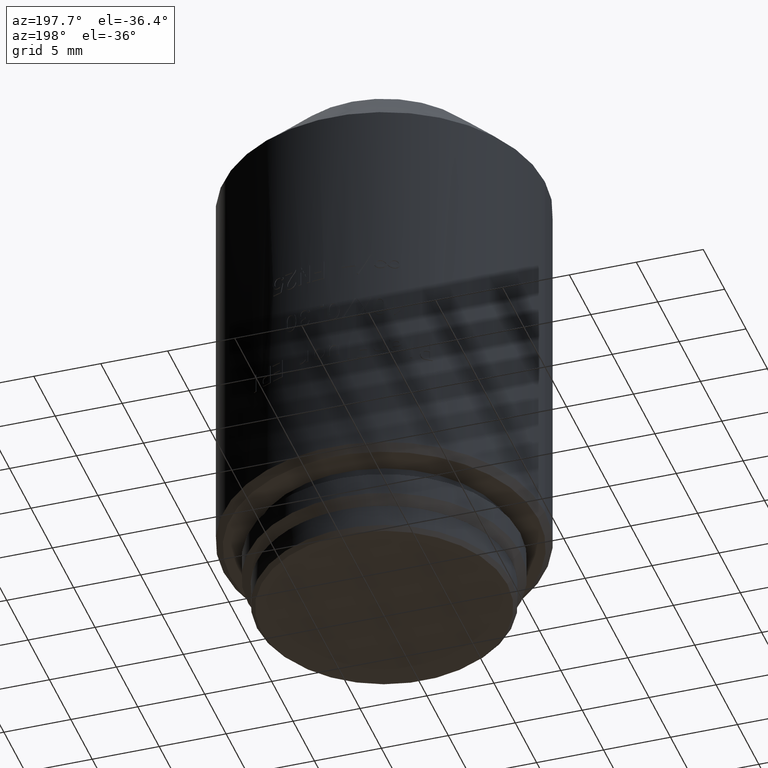
[diagram: clean part render]
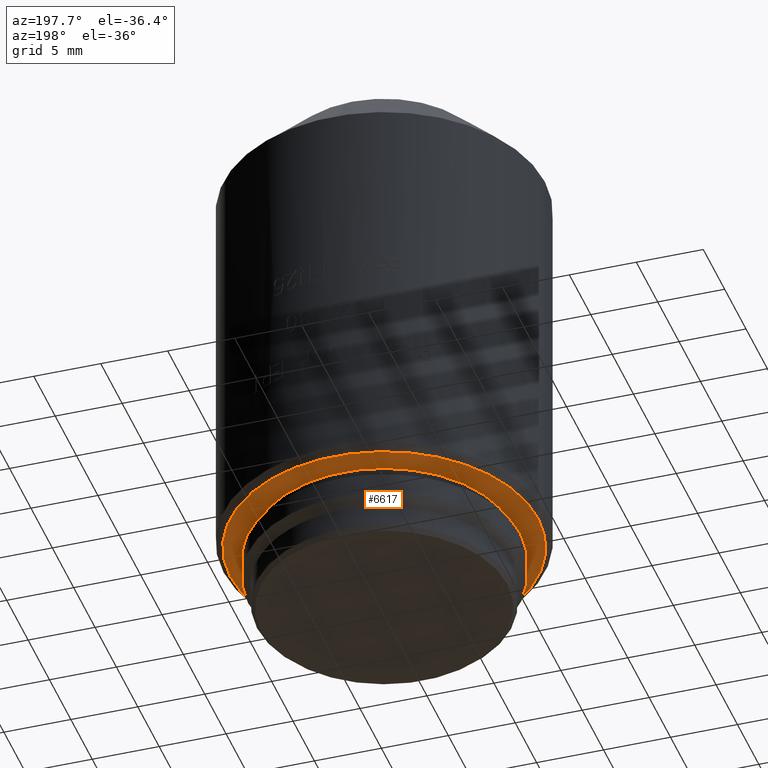
[diagram: same view with one face highlighted and labeled with its STEP entity id]
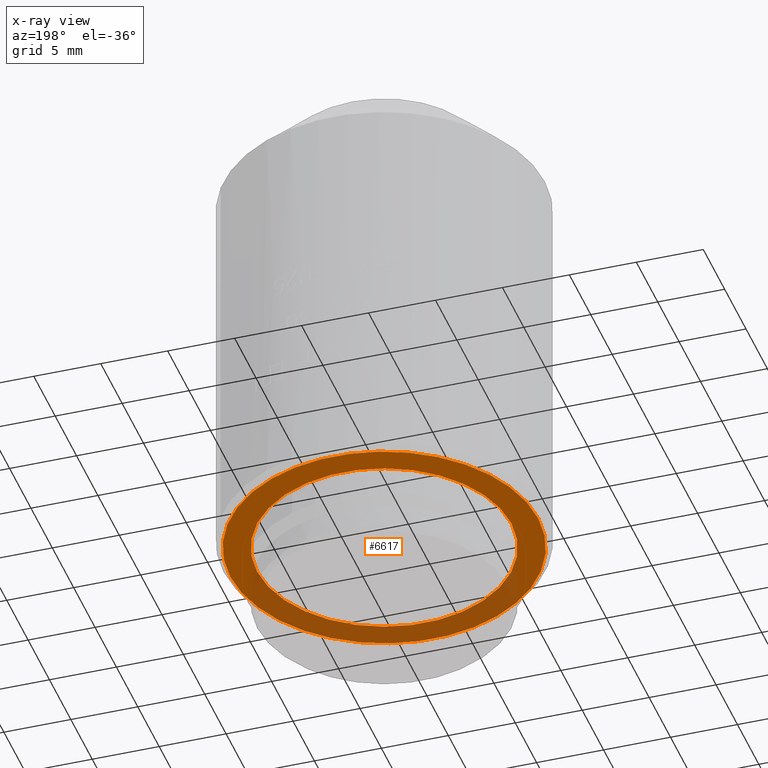
[diagram: x-ray of the same camera — body ghosted, the highlighted face saturated]
A machine part, auxiliary view. The second image highlights one B-rep face of the part: STEP entity #6617.
The next image is the same camera in x-ray: the body ghosted, the highlighted face saturated — about 36% of this face is hidden behind the body in this view.
In plain terms, the highlighted planar face has unit normal (0, 0, -1).
Its self-contained STEP definition (entity closure, byte-faithful):
#265 = DIRECTION ( 'NONE',  ( 0.000000000000000000, 0.000000000000000000, -1.000000000000000000 ) ) ;
#359 = DIRECTION ( 'NONE',  ( -1.000000000000000000, 0.000000000000000000, 0.000000000000000000 ) ) ;
#415 = AXIS2_PLACEMENT_3D ( 'NONE', #3489, #13536, #10316 ) ;
#1406 = DIRECTION ( 'NONE',  ( -1.000000000000000000, 0.000000000000000000, 0.000000000000000000 ) ) ;
#1951 = DIRECTION ( 'NONE',  ( 0.000000000000000000, 0.000000000000000000, -1.000000000000000000 ) ) ;
#2270 = CARTESIAN_POINT ( 'NONE',  ( 0.000000000000000000, 0.000000000000000000, 5.299999999999999822 ) ) ;
#2687 = ORIENTED_EDGE ( 'NONE', *, *, #20535, .F. ) ;
#3489 = CARTESIAN_POINT ( 'NONE',  ( 0.000000000000000000, 0.000000000000000000, 5.299999999999999822 ) ) ;
#4546 = CIRCLE ( 'NONE', #19889, 11.50000000000000000 ) ;
#5059 = VERTEX_POINT ( 'NONE', #9991 ) ;
#6203 = DIRECTION ( 'NONE',  ( 0.000000000000000000, 0.000000000000000000, -1.000000000000000000 ) ) ;
#6617 = ADVANCED_FACE ( 'NONE', ( #9020, #19180 ), #10590, .T. ) ;
#6679 = AXIS2_PLACEMENT_3D ( 'NONE', #13375, #11706, #1406 ) ;
#7120 = DIRECTION ( 'NONE',  ( 0.000000000000000000, -1.000000000000000000, 0.000000000000000000 ) ) ;
#7543 = AXIS2_PLACEMENT_3D ( 'NONE', #8808, #265, #7120 ) ;
#7583 = ORIENTED_EDGE ( 'NONE', *, *, #8178, .T. ) ;
#7595 = EDGE_LOOP ( 'NONE', ( #11756, #2687 ) ) ;
#8178 = EDGE_CURVE ( 'NONE', #5059, #14647, #14746, .T. ) ;
#8808 = CARTESIAN_POINT ( 'NONE',  ( 0.000000000000000000, 0.000000000000000000, 5.299999999999999822 ) ) ;
#9020 = FACE_BOUND ( 'NONE', #7595, .T. ) ;
#9099 = CIRCLE ( 'NONE', #11612, 9.500000000000000000 ) ;
#9991 = CARTESIAN_POINT ( 'NONE',  ( -11.50000000000000000, 1.438959988998139963E-15, 5.299999999999999822 ) ) ;
#9993 = DIRECTION ( 'NONE',  ( -1.000000000000000000, 0.000000000000000000, 0.000000000000000000 ) ) ;
#10316 = DIRECTION ( 'NONE',  ( -1.000000000000000000, 0.000000000000000000, 0.000000000000000000 ) ) ;
#10590 = PLANE ( 'NONE',  #7543 ) ;
#11612 = AXIS2_PLACEMENT_3D ( 'NONE', #14106, #6203, #9993 ) ;
#11706 = DIRECTION ( 'NONE',  ( 0.000000000000000000, 0.000000000000000000, -1.000000000000000000 ) ) ;
#11756 = ORIENTED_EDGE ( 'NONE', *, *, #13531, .F. ) ;
#13375 = CARTESIAN_POINT ( 'NONE',  ( 0.000000000000000000, 0.000000000000000000, 5.299999999999999822 ) ) ;
#13531 = EDGE_CURVE ( 'NONE', #20081, #22028, #18452, .T. ) ;
#13536 = DIRECTION ( 'NONE',  ( 0.000000000000000000, 0.000000000000000000, -1.000000000000000000 ) ) ;
#13788 = EDGE_CURVE ( 'NONE', #14647, #5059, #4546, .T. ) ;
#13909 = CARTESIAN_POINT ( 'NONE',  ( -9.500000000000000000, 1.163414459189985485E-15, 5.299999999999999822 ) ) ;
#14106 = CARTESIAN_POINT ( 'NONE',  ( 0.000000000000000000, 0.000000000000000000, 5.299999999999999822 ) ) ;
#14647 = VERTEX_POINT ( 'NONE', #19938 ) ;
#14746 = CIRCLE ( 'NONE', #415, 11.50000000000000000 ) ;
#16418 = CARTESIAN_POINT ( 'NONE',  ( 9.500000000000000000, 0.000000000000000000, 5.299999999999999822 ) ) ;
#18323 = EDGE_LOOP ( 'NONE', ( #21994, #7583 ) ) ;
#18452 = CIRCLE ( 'NONE', #6679, 9.500000000000000000 ) ;
#19180 = FACE_OUTER_BOUND ( 'NONE', #18323, .T. ) ;
#19889 = AXIS2_PLACEMENT_3D ( 'NONE', #2270, #1951, #359 ) ;
#19938 = CARTESIAN_POINT ( 'NONE',  ( 11.50000000000000000, 0.000000000000000000, 5.299999999999999822 ) ) ;
#20081 = VERTEX_POINT ( 'NONE', #16418 ) ;
#20535 = EDGE_CURVE ( 'NONE', #22028, #20081, #9099, .T. ) ;
#21994 = ORIENTED_EDGE ( 'NONE', *, *, #13788, .T. ) ;
#22028 = VERTEX_POINT ( 'NONE', #13909 ) ;